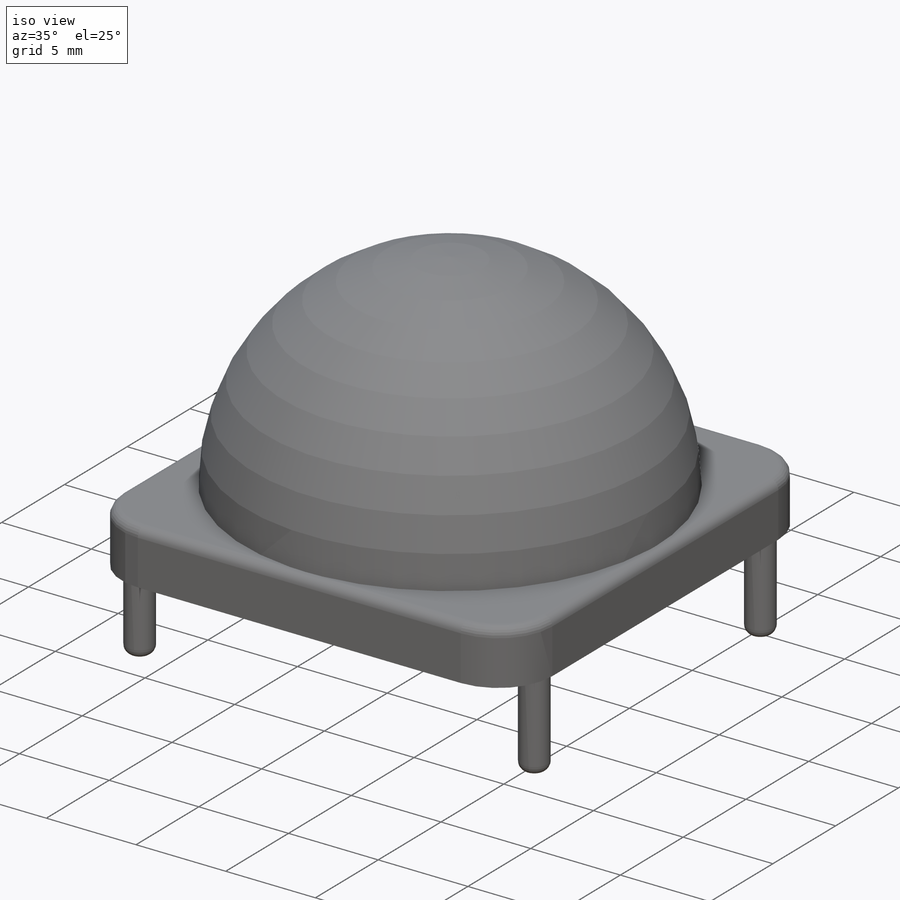
[diagram: iso view]
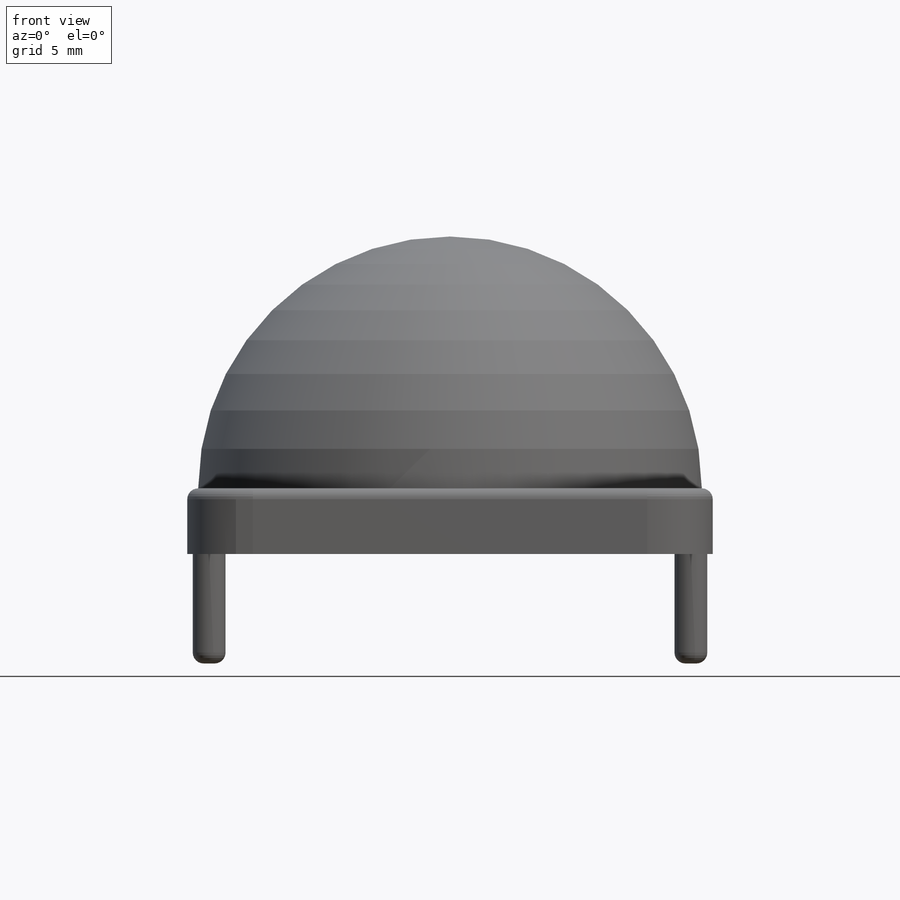
[diagram: front view]
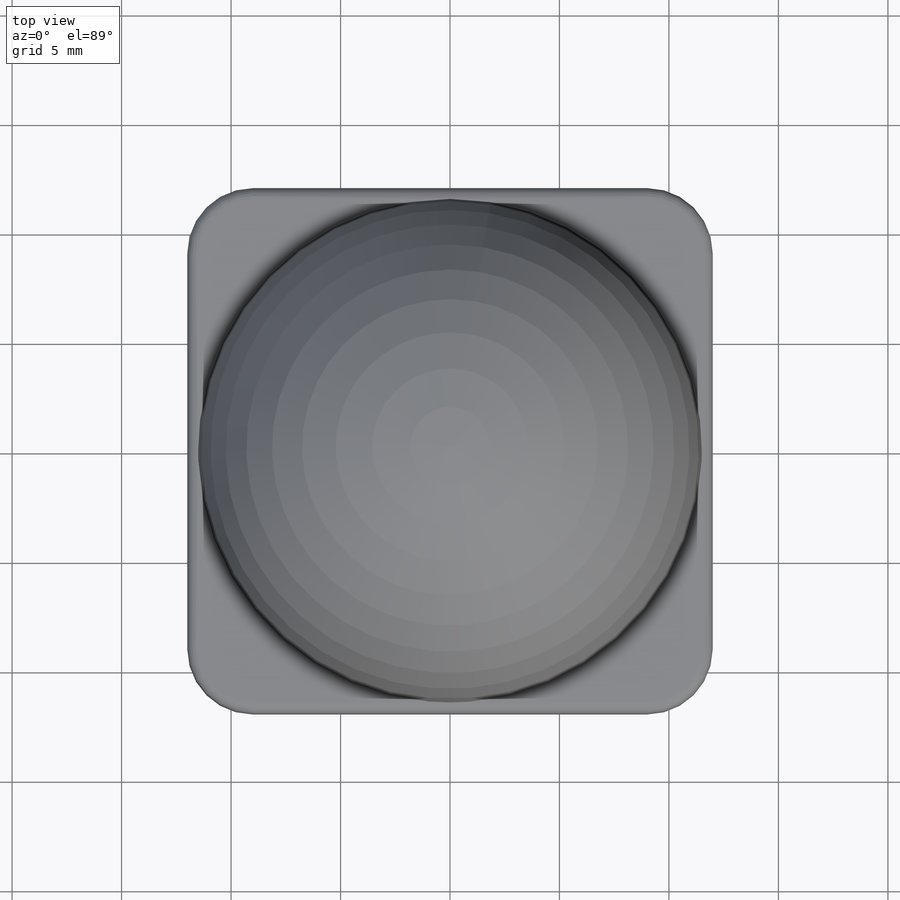
[diagram: top view]
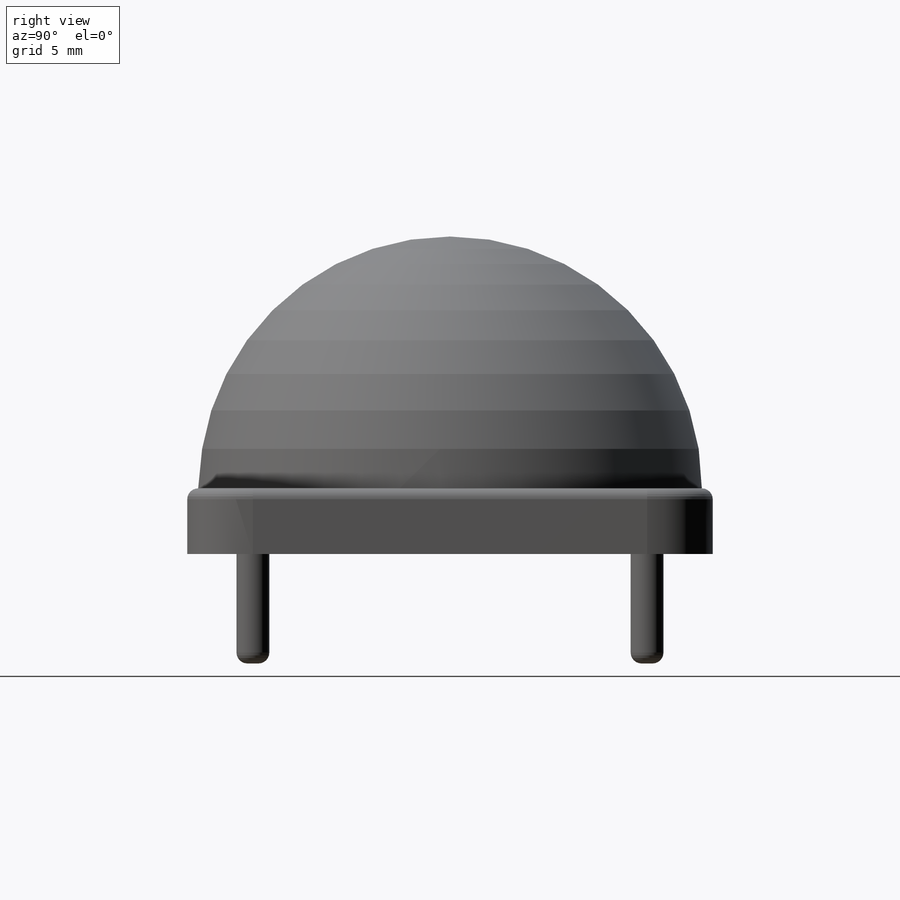
[diagram: right view]
SOLIDWORKS PART (.sldprt)
format: sldprt  version: not decoded by parser v0  size: 1,145,856 bytes
history: native  units: mm
features: sketch x8, cut_extrude x5, plane x4, pattern_circular x4, fillet x3, extrude x2, material x1, revolve x1, shell x1 (+12 scaffold rows collapsed)
feature tree (41):
  scaffold x12  (default folders/planes/origin — collapsed)
  material  "1060 Alloy"
  sketch  "Sketch1"  dims[D1=24.0mm]
  extrude  "Boss-Extrude1"  Depth=2mm
  sketch  "Sketch2"  dims[D1=11.5mm]
  revolve  "Revolve2"  Angle=360deg
  fillet  "Fillet1"  Radius=3mm
  shell  "Shell2"  Thickness=2mm
  sketch  "Sketch3"  dims[c1.D1=1.5mm c1.D2=2.0mm c1.D3=2.0mm c2.D2=11.0mm c2.D3=9.0mm]
  extrude  "Boss-Extrude2"  Depth=5mm
  sketch  "Sketch7"  dims[D1=4.0mm]
  cut_extrude  "Cut-Extrude4"  Depth=12mm
  plane  "Plane3"
  sketch  "Sketch8"  dims[D1=4.0mm]
  cut_extrude  "Cut-Extrude5"  Depth=5mm
  pattern_circular  "CirPattern3"  Count=5 Angle=288deg
  plane  "Plane4"
  plane  "Plane5"  Offset=8.25mm
  sketch  "Sketch9"  dims[D1=~2.497986mm]
  cut_extrude  "Cut-Extrude6"  Depth=5mm
  pattern_circular  "CirPattern5"  Count=5 Angle=360deg
  plane  "Plane6"
  sketch  "Sketch10"
  cut_extrude  "Cut-Extrude7"  Depth=5mm
  pattern_circular  "CirPattern6"  Count=5 Angle=360deg
  sketch  "Sketch11"
  cut_extrude  "Cut-Extrude8"  Depth=10.5mm
  pattern_circular  "CirPattern7"  Count=10 Angle=360deg
  fillet  "Fillet2"  Radius=0.5mm
  fillet  "Fillet3"  Radius=0.5mm
decode coverage: 22 of 24 modeling features carry decoded parameters
note: ~ marks probable driven/reference dimensions
note: suppression state not decoded; provenance and decode notes live in map.json
